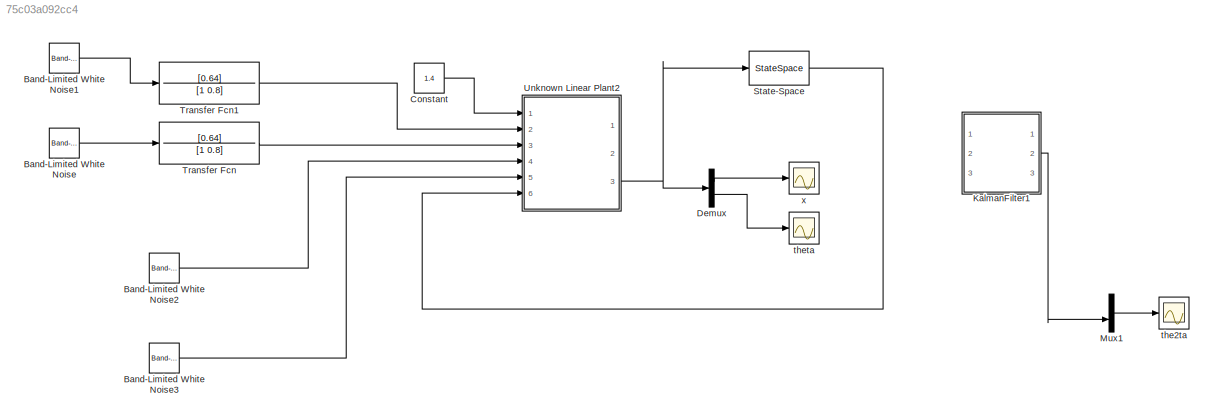
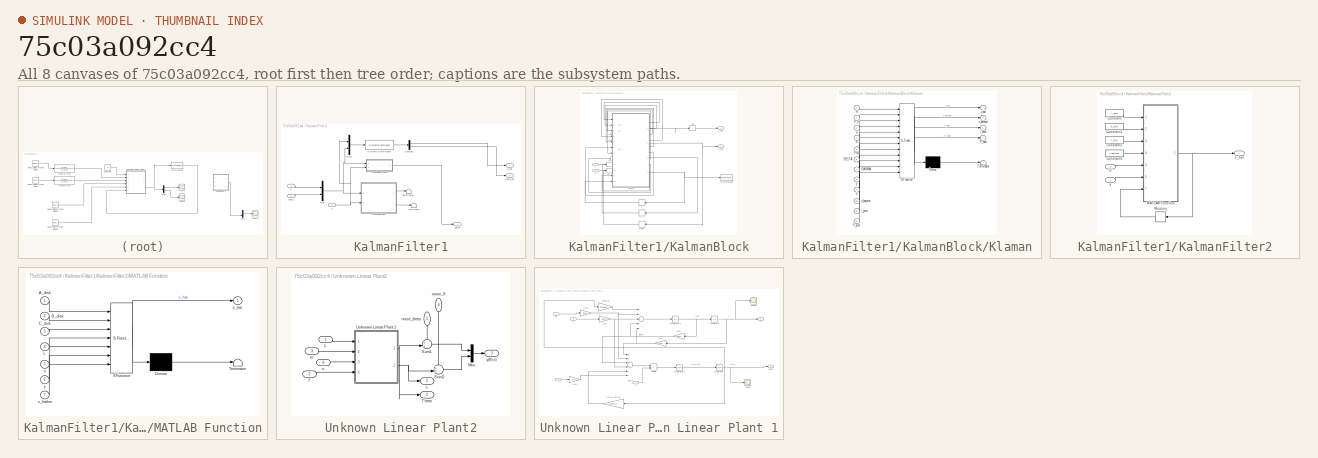
[diagram: thumbnail index - all 8 canvases of the model, root first then tree order]
MODEL slx_75c03a092cc4
KIND model
BLOCK [Reference] Band-Limited White Noise  REF=simulink/Sources/Band-Limited
White Noise
  Cov = 10e-4
  Ports = [0, 1]
  SourceBlock = simulink/Sources/Band-Limited\nWhite Noise
  SourceType = Band-Limited White Noise.
  Ts = h
  VectorParams1D = on
  seed = [23343]
BLOCK [Reference] Band-Limited White Noise1  REF=simulink/Sources/Band-Limited
White Noise
  Cov = 10
  Ports = [0, 1]
  SourceBlock = simulink/Sources/Band-Limited\nWhite Noise
  SourceType = Band-Limited White Noise.
  Ts = h
  VectorParams1D = on
  seed = [23344]
BLOCK [Reference] Band-Limited White Noise2  REF=simulink/Sources/Band-Limited
White Noise
  Cov = 10e-7
  Ports = [0, 1]
  SourceBlock = simulink/Sources/Band-Limited\nWhite Noise
  SourceType = Band-Limited White Noise.
  Ts = h
  VectorParams1D = on
  seed = [23343]
BLOCK [Reference] Band-Limited White Noise3  REF=simulink/Sources/Band-Limited
White Noise
  Cov = 10e-7
  Ports = [0, 1]
  SourceBlock = simulink/Sources/Band-Limited\nWhite Noise
  SourceType = Band-Limited White Noise.
  Ts = h
  VectorParams1D = on
  seed = [23344]
BLOCK [Constant] Constant
  Value = 1.4
BLOCK [Demux] Demux
  DisplayOption = bar
  Outputs = 2
  Ports = [1, 2]
BLOCK [SubSystem] KalmanFilter1
  Commented = on
  Ports = [3, 3]
  RequestExecContextInheritance = off
BLOCK [Demux] KalmanFilter1/Demux1
  DisplayOption = bar
  Outputs = 2
  Ports = [1, 2]
BLOCK [DiscreteStateSpace] KalmanFilter1/Discrete State-Space
  A = A_ss
  B = B_ss
  C = C_ss
  D = D_ss
BLOCK [SubSystem] KalmanFilter1/KalmanBlock
  Ports = [2, 2]
  RequestExecContextInheritance = off
BLOCK [Constant] KalmanFilter1/KalmanBlock/A2
  Value = H
BLOCK [Constant] KalmanFilter1/KalmanBlock/A4
  Value = phi
BLOCK [Constant] KalmanFilter1/KalmanBlock/A5
  Value = delta
BLOCK [Constant] KalmanFilter1/KalmanBlock/A6
  Value = gamma
BLOCK [Constant] KalmanFilter1/KalmanBlock/A7
  Value = P_0
BLOCK [Constant] KalmanFilter1/KalmanBlock/A8
  Value = Q_kalman
BLOCK [Constant] KalmanFilter1/KalmanBlock/A9
  Value = R_kalman
BLOCK [InitialCondition] KalmanFilter1/KalmanBlock/IC3
  Value = y_0
BLOCK [InitialCondition] KalmanFilter1/KalmanBlock/IC4
  Value = 0
BLOCK [InitialCondition] KalmanFilter1/KalmanBlock/IC5
  Value = X_0
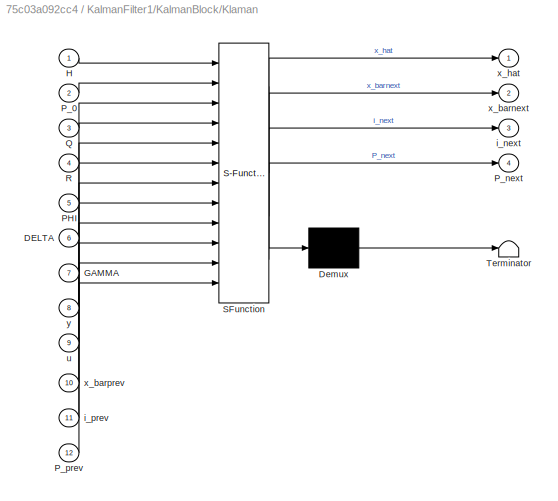
BLOCK [SubSystem] KalmanFilter1/KalmanBlock/Klaman
  ErrorFcn = Stateflow.Translate.translate
  PermitHierarchicalResolution = ExplicitOnly
  Ports = [12, 4]
  RequestExecContextInheritance = off
  SFBlockType = MATLAB Function
  TreatAsAtomicUnit = on
BLOCK [Demux] KalmanFilter1/KalmanBlock/Klaman/ Demux 
  Outputs = 1
  Ports = [1, 1]
BLOCK [S-Function] KalmanFilter1/KalmanBlock/Klaman/ SFunction 
  EnableBusSupport = on
  FunctionName = sf_sfun
  PortCounts = [12 5]
  Ports = [12, 5]
  Tag = Stateflow S-Function ForErik_14b 5
BLOCK [Terminator] KalmanFilter1/KalmanBlock/Klaman/ Terminator 
BLOCK [Inport] KalmanFilter1/KalmanBlock/Klaman/DELTA
  IconDisplay = Port number
  Port = 6
BLOCK [Inport] KalmanFilter1/KalmanBlock/Klaman/GAMMA
  IconDisplay = Port number
  Port = 7
BLOCK [Inport] KalmanFilter1/KalmanBlock/Klaman/H
  IconDisplay = Port number
BLOCK [Inport] KalmanFilter1/KalmanBlock/Klaman/PHI
  IconDisplay = Port number
  Port = 5
BLOCK [Inport] KalmanFilter1/KalmanBlock/Klaman/P_0
  IconDisplay = Port number
  Port = 2
BLOCK [Outport] KalmanFilter1/KalmanBlock/Klaman/P_next
  IconDisplay = Port number
  Port = 4
BLOCK [Inport] KalmanFilter1/KalmanBlock/Klaman/P_prev
  IconDisplay = Port number
  Port = 12
BLOCK [Inport] KalmanFilter1/KalmanBlock/Klaman/Q
  IconDisplay = Port number
  Port = 3
BLOCK [Inport] KalmanFilter1/KalmanBlock/Klaman/R
  IconDisplay = Port number
  Port = 4
BLOCK [Outport] KalmanFilter1/KalmanBlock/Klaman/i_next
  IconDisplay = Port number
  Port = 3
BLOCK [Inport] KalmanFilter1/KalmanBlock/Klaman/i_prev
  IconDisplay = Port number
  Port = 11
BLOCK [Inport] KalmanFilter1/KalmanBlock/Klaman/u
  IconDisplay = Port number
  Port = 9
BLOCK [Outport] KalmanFilter1/KalmanBlock/Klaman/x_barnext
  IconDisplay = Port number
  Port = 2
BLOCK [Inport] KalmanFilter1/KalmanBlock/Klaman/x_barprev
  IconDisplay = Port number
  Port = 10
BLOCK [Outport] KalmanFilter1/KalmanBlock/Klaman/x_hat
  IconDisplay = Port number
BLOCK [Inport] KalmanFilter1/KalmanBlock/Klaman/y
  IconDisplay = Port number
  Port = 8
BLOCK [Memory] KalmanFilter1/KalmanBlock/P
  X0 = P_0
BLOCK [ToWorkspace] KalmanFilter1/KalmanBlock/To Workspace
  FixptAsFi = on
  MaxDataPoints = inf
  Ports = [1]
  SampleTime = -1
  Save2DSignal = 3-D array (concatenate along third dimension)
  VariableName = P_simulation
BLOCK [Memory] KalmanFilter1/KalmanBlock/i 
BLOCK [Inport] KalmanFilter1/KalmanBlock/u 
  IconDisplay = Port number
  Port = 2
BLOCK [Outport] KalmanFilter1/KalmanBlock/x_bar
  IconDisplay = Port number
  Port = 2
BLOCK [Memory] KalmanFilter1/KalmanBlock/x_bar'
  X0 = X_0
BLOCK [Outport] KalmanFilter1/KalmanBlock/x_hat
  IconDisplay = Port number
BLOCK [Inport] KalmanFilter1/KalmanBlock/y 
  IconDisplay = Port number
BLOCK [SubSystem] KalmanFilter1/KalmanFilter2
  Ports = [2, 1]
  RequestExecContextInheritance = off
BLOCK [Constant] KalmanFilter1/KalmanFilter2/Constant
  Value = A_disk
BLOCK [Constant] KalmanFilter1/KalmanFilter2/Constant1
  Value = B_disk
BLOCK [Constant] KalmanFilter1/KalmanFilter2/Constant2
  Value = C_disk
BLOCK [Constant] KalmanFilter1/KalmanFilter2/Constant3
  Value = L_kalman
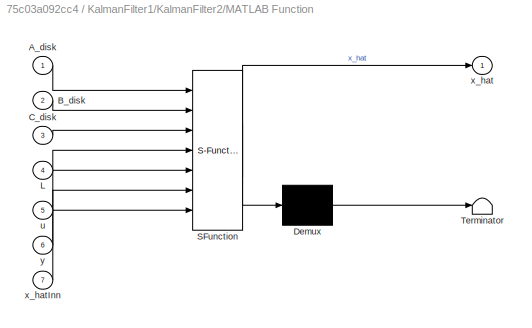
BLOCK [SubSystem] KalmanFilter1/KalmanFilter2/MATLAB Function
  ErrorFcn = Stateflow.Translate.translate
  PermitHierarchicalResolution = ExplicitOnly
  Ports = [7, 1]
  RequestExecContextInheritance = off
  SFBlockType = MATLAB Function
  TreatAsAtomicUnit = on
BLOCK [Demux] KalmanFilter1/KalmanFilter2/MATLAB Function/ Demux 
  Outputs = 1
  Ports = [1, 1]
BLOCK [S-Function] KalmanFilter1/KalmanFilter2/MATLAB Function/ SFunction 
  EnableBusSupport = on
  FunctionName = sf_sfun
  PortCounts = [7 2]
  Ports = [7, 2]
  Tag = Stateflow S-Function ForErik_14b 7
BLOCK [Terminator] KalmanFilter1/KalmanFilter2/MATLAB Function/ Terminator 
BLOCK [Inport] KalmanFilter1/KalmanFilter2/MATLAB Function/A_disk
  IconDisplay = Port number
BLOCK [Inport] KalmanFilter1/KalmanFilter2/MATLAB Function/B_disk
  IconDisplay = Port number
  Port = 2
BLOCK [Inport] KalmanFilter1/KalmanFilter2/MATLAB Function/C_disk
  IconDisplay = Port number
  Port = 3
BLOCK [Inport] KalmanFilter1/KalmanFilter2/MATLAB Function/L
  IconDisplay = Port number
  Port = 4
BLOCK [Inport] KalmanFilter1/KalmanFilter2/MATLAB Function/u
  IconDisplay = Port number
  Port = 5
BLOCK [Outport] KalmanFilter1/KalmanFilter2/MATLAB Function/x_hat
  IconDisplay = Port number
BLOCK [Inport] KalmanFilter1/KalmanFilter2/MATLAB Function/x_hatInn
  IconDisplay = Port number
  Port = 7
BLOCK [Inport] KalmanFilter1/KalmanFilter2/MATLAB Function/y
  IconDisplay = Port number
  Port = 6
BLOCK [Memory] KalmanFilter1/KalmanFilter2/Memory
  X0 = X_0
BLOCK [Inport] KalmanFilter1/KalmanFilter2/u
  IconDisplay = Port number
  Port = 2
BLOCK [Outport] KalmanFilter1/KalmanFilter2/x_hat
  IconDisplay = Port number
BLOCK [Inport] KalmanFilter1/KalmanFilter2/y
  IconDisplay = Port number
BLOCK [Mux] KalmanFilter1/Mux
  DisplayOption = bar
  Inputs = 2
  Ports = [2, 1]
BLOCK [Mux] KalmanFilter1/Mux1
  DisplayOption = bar
  Inputs = 2
  Ports = [2, 1]
BLOCK [Terminator] KalmanFilter1/Terminator
BLOCK [Terminator] KalmanFilter1/Terminator1
BLOCK [Inport] KalmanFilter1/theta
  IconDisplay = Port number
  Port = 2
BLOCK [Outport] KalmanFilter1/theta_hat
  IconDisplay = Port number
  Port = 2
BLOCK [Inport] KalmanFilter1/u 
  IconDisplay = Port number
  Port = 3
BLOCK [Outport] KalmanFilter1/vector
  IconDisplay = Port number
  Port = 3
BLOCK [Inport] KalmanFilter1/x
  IconDisplay = Port number
BLOCK [Outport] KalmanFilter1/x_hat
  IconDisplay = Port number
BLOCK [Mux] Mux1
  Commented = on
  DisplayOption = bar
  Inputs = 2
  Ports = [2, 1]
BLOCK [StateSpace] State-Space
  A = A_kA2
  B = B_kA2
  C = C_kA2
  D = D_kA2
  Ports = [1, 1]
  X0 = 0
BLOCK [TransferFcn] Transfer Fcn
  Denominator = [1 0.8]
  Numerator = [0.64]
BLOCK [TransferFcn] Transfer Fcn1
  Denominator = [1 0.8]
  Numerator = [0.64]
BLOCK [SubSystem] Unknown Linear Plant2
  Ports = [6, 3]
  RequestExecContextInheritance = off
BLOCK [Inport] Unknown Linear Plant2/L
  IconDisplay = Port number
BLOCK [Mux] Unknown Linear Plant2/Mux
  DisplayOption = bar
  Inputs = 2
  Ports = [2, 1]
BLOCK [Sum] Unknown Linear Plant2/Sum1
  IconShape = round
  InputSameDT = off
  Inputs = ++|
  OutDataTypeStr = Inherit: Inherit via internal rule
  Ports = [2, 1]
  SaturateOnIntegerOverflow = off
BLOCK [Sum] Unknown Linear Plant2/Sum2
  IconShape = round
  InputSameDT = off
  Inputs = ++|
  OutDataTypeStr = Inherit: Inherit via internal rule
  Ports = [2, 1]
  SaturateOnIntegerOverflow = off
BLOCK [Outport] Unknown Linear Plant2/Theta
  IconDisplay = Port number
  Port = 2
BLOCK [SubSystem] Unknown Linear Plant2/Unknown Linear Plant 1
  Ports = [4, 2]
  RequestExecContextInheritance = off
BLOCK [Gain] Unknown Linear Plant2/Unknown Linear Plant 1/((m+M)*g)//M
  Gain = ((m+M)*g)/M
  OutDataTypeStr = Inherit: Inherit via internal rule
  ParamDataTypeStr = Inherit: Inherit via internal rule
  SaturateOnIntegerOverflow = off
BLOCK [Gain] Unknown Linear Plant2/Unknown Linear Plant 1/(mg)//M
  Gain = m*g/M
  OutDataTypeStr = Inherit: Inherit via internal rule
  ParamDataTypeStr = Inherit: Inherit via internal rule
  SaturateOnIntegerOverflow = off
BLOCK [Gain] Unknown Linear Plant2/Unknown Linear Plant 1/1//M
  Gain = 1/M
  OutDataTypeStr = Inherit: Inherit via internal rule
  ParamDataTypeStr = Inherit: Inherit via internal rule
  SaturateOnIntegerOverflow = off
BLOCK [Gain] Unknown Linear Plant2/Unknown Linear Plant 1/1//M1
  Gain = 1/M
  OutDataTypeStr = Inherit: Inherit via internal rule
  ParamDataTypeStr = Inherit: Inherit via internal rule
  SaturateOnIntegerOverflow = off
BLOCK [Gain] Unknown Linear Plant2/Unknown Linear Plant 1/1//M2
  Gain = 1/m
  OutDataTypeStr = Inherit: Inherit via internal rule
  ParamDataTypeStr = Inherit: Inherit via internal rule
  SaturateOnIntegerOverflow = off
BLOCK [Product] Unknown Linear Plant2/Unknown Linear Plant 1/Divide
  InputSameDT = off
  Inputs = */
  OutDataTypeStr = Inherit: Inherit via internal rule
  Ports = [2, 1]
  RndMeth = Floor
  SaturateOnIntegerOverflow = off
BLOCK [Integrator] Unknown Linear Plant2/Unknown Linear Plant 1/Integrator
  Ports = [1, 1]
BLOCK [Integrator] Unknown Linear Plant2/Unknown Linear Plant 1/Integrator1
  Ports = [1, 1]
BLOCK [Integrator] Unknown Linear Plant2/Unknown Linear Plant 1/Integrator2
  Ports = [1, 1]
BLOCK [Integrator] Unknown Linear Plant2/Unknown Linear Plant 1/Integrator3
  Ports = [1, 1]
BLOCK [Inport] Unknown Linear Plant2/Unknown Linear Plant 1/L
  IconDisplay = Port number
BLOCK [Scope] Unknown Linear Plant2/Unknown Linear Plant 1/Scope
  DataFormat = StructureWithTime
  Floating = off
  LimitDataPoints = off
  NumInputPorts = 1
  Ports = [1]
  SaveName = ScopeData4
  ShowLegends = off
  YMax = 32.5
  YMin = 0
BLOCK [Scope] Unknown Linear Plant2/Unknown Linear Plant 1/Scope1
  DataFormat = StructureWithTime
  Floating = off
  LimitDataPoints = off
  NumInputPorts = 1
  Ports = [1]
  SaveName = ScopeData5
  ShowLegends = off
  YMax = 0.175
  YMin = 0.12
BLOCK [Sum] Unknown Linear Plant2/Unknown Linear Plant 1/Sum1
  InputSameDT = off
  Inputs = --+--
  OutDataTypeStr = Inherit: Inherit via internal rule
  Ports = [5, 1]
  SaturateOnIntegerOverflow = off
BLOCK [Sum] Unknown Linear Plant2/Unknown Linear Plant 1/Sum3
  InputSameDT = off
  Inputs = +++-+-
  OutDataTypeStr = Inherit: Inherit via internal rule
  Ports = [6, 1]
  SaturateOnIntegerOverflow = off
BLOCK [Gain] Unknown Linear Plant2/Unknown Linear Plant 1/b//M
  Gain = b/M
  OutDataTypeStr = Inherit: Inherit via internal rule
  ParamDataTypeStr = Inherit: Inherit via internal rule
  SaturateOnIntegerOverflow = off
BLOCK [Inport] Unknown Linear Plant2/Unknown Linear Plant 1/f
  IconDisplay = Port number
  Port = 4
BLOCK [Gain] Unknown Linear Plant2/Unknown Linear Plant 1/k//M
  Gain = k/M
  OutDataTypeStr = Inherit: Inherit via internal rule
  ParamDataTypeStr = Inherit: Inherit via internal rule
  SaturateOnIntegerOverflow = off
BLOCK [Outport] Unknown Linear Plant2/Unknown Linear Plant 1/theta
  IconDisplay = Port number
BLOCK [Inport] Unknown Linear Plant2/Unknown Linear Plant 1/u
  IconDisplay = Port number
  Port = 3
BLOCK [Inport] Unknown Linear Plant2/Unknown Linear Plant 1/w
  IconDisplay = Port number
  Port = 2
BLOCK [Outport] Unknown Linear Plant2/Unknown Linear Plant 1/x
  IconDisplay = Port number
  Port = 2
BLOCK [Inport] Unknown Linear Plant2/f
  IconDisplay = Port number
  Port = 2
BLOCK [Inport] Unknown Linear Plant2/noise_X
  IconDisplay = Port number
  Port = 4
BLOCK [Inport] Unknown Linear Plant2/noise_theta
  IconDisplay = Port number
  Port = 5
BLOCK [Inport] Unknown Linear Plant2/u
  IconDisplay = Port number
  Port = 6
BLOCK [Inport] Unknown Linear Plant2/w
  IconDisplay = Port number
  Port = 3
BLOCK [Outport] Unknown Linear Plant2/x
  IconDisplay = Port number
BLOCK [Outport] Unknown Linear Plant2/y(th,x)
  IconDisplay = Port number
  Port = 3
BLOCK [Scope] the2ta
  Floating = off
  LimitDataPoints = off
  NumInputPorts = 1
  Ports = [1]
  SaveName = ScopeData1
  ShowLegends = off
BLOCK [Scope] theta
  Floating = off
  LimitDataPoints = off
  NumInputPorts = 1
  Ports = [1]
  SaveName = ScopeData2
  ShowLegends = off
BLOCK [Scope] x
  Floating = off
  LimitDataPoints = off
  NumInputPorts = 1
  Ports = [1]
  ShowLegends = off
ANNOTATION Unknown Linear Plant2/Unknown Linear Plant 1: \theta
ANNOTATION Unknown Linear Plant2/Unknown Linear Plant 1: \theta dot
ANNOTATION Unknown Linear Plant2/Unknown Linear Plant 1: x
ANNOTATION Unknown Linear Plant2/Unknown Linear Plant 1: x dot
LINE Band-Limited White Noise1:1 -> Transfer Fcn1:1
LINE Band-Limited White Noise2:1 -> Unknown Linear Plant2:4
LINE Band-Limited White Noise3:1 -> Unknown Linear Plant2:5
LINE Band-Limited White Noise:1 -> Transfer Fcn:1
LINE Constant:1 -> Unknown Linear Plant2:1
LINE Demux:1 -> x:1
LINE Demux:2 -> theta:1
LINE KalmanFilter1/Demux1:1 -> KalmanFilter1/x_hat:1
LINE KalmanFilter1/Demux1:2 -> KalmanFilter1/theta_hat:1
LINE KalmanFilter1/Discrete State-Space:1 -> KalmanFilter1/Demux1:1
LINE KalmanFilter1/KalmanBlock/A2:1 -> KalmanFilter1/KalmanBlock/Klaman:1
LINE KalmanFilter1/KalmanBlock/A4:1 -> KalmanFilter1/KalmanBlock/Klaman:5
LINE KalmanFilter1/KalmanBlock/A5:1 -> KalmanFilter1/KalmanBlock/Klaman:6
LINE KalmanFilter1/KalmanBlock/A6:1 -> KalmanFilter1/KalmanBlock/Klaman:7
LINE KalmanFilter1/KalmanBlock/A7:1 -> KalmanFilter1/KalmanBlock/Klaman:2
LINE KalmanFilter1/KalmanBlock/A8:1 -> KalmanFilter1/KalmanBlock/Klaman:3
LINE KalmanFilter1/KalmanBlock/A9:1 -> KalmanFilter1/KalmanBlock/Klaman:4
LINE KalmanFilter1/KalmanBlock/IC3:1 -> KalmanFilter1/KalmanBlock/Klaman:8
LINE KalmanFilter1/KalmanBlock/IC4:1 -> KalmanFilter1/KalmanBlock/Klaman:9
LINE KalmanFilter1/KalmanBlock/IC5:1 -> KalmanFilter1/KalmanBlock/x_hat:1
LINE KalmanFilter1/KalmanBlock/Klaman:1 -> KalmanFilter1/KalmanBlock/IC5:1
NET KalmanFilter1/KalmanBlock/Klaman:2 -> KalmanFilter1/KalmanBlock/x_bar':1, KalmanFilter1/KalmanBlock/x_bar:1
LINE KalmanFilter1/KalmanBlock/Klaman:3 -> KalmanFilter1/KalmanBlock/i :1
NET KalmanFilter1/KalmanBlock/Klaman:4 -> KalmanFilter1/KalmanBlock/P:1, KalmanFilter1/KalmanBlock/To Workspace:1
LINE KalmanFilter1/KalmanBlock/P:1 -> KalmanFilter1/KalmanBlock/Klaman:12
LINE KalmanFilter1/KalmanBlock/i :1 -> KalmanFilter1/KalmanBlock/Klaman:11
LINE KalmanFilter1/KalmanBlock/u :1 -> KalmanFilter1/KalmanBlock/IC4:1
LINE KalmanFilter1/KalmanBlock/x_bar':1 -> KalmanFilter1/KalmanBlock/Klaman:10
LINE KalmanFilter1/KalmanBlock/y :1 -> KalmanFilter1/KalmanBlock/IC3:1
LINE KalmanFilter1/KalmanBlock:1 -> KalmanFilter1/Terminator1:1
LINE KalmanFilter1/KalmanBlock:2 -> KalmanFilter1/Terminator:1
LINE KalmanFilter1/KalmanFilter2/Constant1:1 -> KalmanFilter1/KalmanFilter2/MATLAB Function:2
LINE KalmanFilter1/KalmanFilter2/Constant2:1 -> KalmanFilter1/KalmanFilter2/MATLAB Function:3
LINE KalmanFilter1/KalmanFilter2/Constant3:1 -> KalmanFilter1/KalmanFilter2/MATLAB Function:4
LINE KalmanFilter1/KalmanFilter2/Constant:1 -> KalmanFilter1/KalmanFilter2/MATLAB Function:1
NET KalmanFilter1/KalmanFilter2/MATLAB Function:1 -> KalmanFilter1/KalmanFilter2/Memory:1, KalmanFilter1/KalmanFilter2/x_hat:1
LINE KalmanFilter1/KalmanFilter2/Memory:1 -> KalmanFilter1/KalmanFilter2/MATLAB Function:7
LINE KalmanFilter1/KalmanFilter2/u:1 -> KalmanFilter1/KalmanFilter2/MATLAB Function:5
LINE KalmanFilter1/KalmanFilter2/y:1 -> KalmanFilter1/KalmanFilter2/MATLAB Function:6
LINE KalmanFilter1/KalmanFilter2:1 -> KalmanFilter1/vector:1
LINE KalmanFilter1/Mux1:1 -> KalmanFilter1/Discrete State-Space:1
NET KalmanFilter1/Mux:1 -> KalmanFilter1/KalmanBlock:1, KalmanFilter1/KalmanFilter2:1, KalmanFilter1/Mux1:2
LINE KalmanFilter1/theta:1 -> KalmanFilter1/Mux:2
NET KalmanFilter1/u :1 -> KalmanFilter1/KalmanBlock:2, KalmanFilter1/KalmanFilter2:2, KalmanFilter1/Mux1:1
LINE KalmanFilter1/x:1 -> KalmanFilter1/Mux:1
LINE KalmanFilter1:2 -> Mux1:2
LINE Mux1:1 -> the2ta:1
LINE State-Space:1 -> Unknown Linear Plant2:6
LINE Transfer Fcn1:1 -> Unknown Linear Plant2:2
LINE Transfer Fcn:1 -> Unknown Linear Plant2:3
LINE Unknown Linear Plant2/L:1 -> Unknown Linear Plant2/Unknown Linear Plant 1:1
LINE Unknown Linear Plant2/Mux:1 -> Unknown Linear Plant2/y(th,x):1
LINE Unknown Linear Plant2/Sum1:1 -> Unknown Linear Plant2/Mux:1
LINE Unknown Linear Plant2/Sum2:1 -> Unknown Linear Plant2/Mux:2
LINE Unknown Linear Plant2/Unknown Linear Plant 1/((m+M)*g)//M:1 -> Unknown Linear Plant2/Unknown Linear Plant 1/Sum3:5
LINE Unknown Linear Plant2/Unknown Linear Plant 1/(mg)//M:1 -> Unknown Linear Plant2/Unknown Linear Plant 1/Sum1:1
NET Unknown Linear Plant2/Unknown Linear Plant 1/1//M1:1 -> Unknown Linear Plant2/Unknown Linear Plant 1/Sum1:2, Unknown Linear Plant2/Unknown Linear Plant 1/Sum3:2
LINE Unknown Linear Plant2/Unknown Linear Plant 1/1//M2:1 -> Unknown Linear Plant2/Unknown Linear Plant 1/Sum3:6
NET Unknown Linear Plant2/Unknown Linear Plant 1/1//M:1 -> Unknown Linear Plant2/Unknown Linear Plant 1/Sum1:3, Unknown Linear Plant2/Unknown Linear Plant 1/Sum3:4
LINE Unknown Linear Plant2/Unknown Linear Plant 1/Divide:1 -> Unknown Linear Plant2/Unknown Linear Plant 1/Integrator3:1
NET Unknown Linear Plant2/Unknown Linear Plant 1/Integrator1:1 -> Unknown Linear Plant2/Unknown Linear Plant 1/Integrator:1, Unknown Linear Plant2/Unknown Linear Plant 1/b//M:1
NET Unknown Linear Plant2/Unknown Linear Plant 1/Integrator2:1 -> Unknown Linear Plant2/Unknown Linear Plant 1/((m+M)*g)//M:1, Unknown Linear Plant2/Unknown Linear Plant 1/(mg)//M:1, Unknown Linear Plant2/Unknown Linear Plant 1/Scope:1, Unknown Linear Plant2/Unknown Linear Plant 1/theta:1
LINE Unknown Linear Plant2/Unknown Linear Plant 1/Integrator3:1 -> Unknown Linear Plant2/Unknown Linear Plant 1/Integrator2:1
NET Unknown Linear Plant2/Unknown Linear Plant 1/Integrator:1 -> Unknown Linear Plant2/Unknown Linear Plant 1/Scope1:1, Unknown Linear Plant2/Unknown Linear Plant 1/k//M:1, Unknown Linear Plant2/Unknown Linear Plant 1/x:1
LINE Unknown Linear Plant2/Unknown Linear Plant 1/L:1 -> Unknown Linear Plant2/Unknown Linear Plant 1/Divide:2
LINE Unknown Linear Plant2/Unknown Linear Plant 1/Sum1:1 -> Unknown Linear Plant2/Unknown Linear Plant 1/Integrator1:1
LINE Unknown Linear Plant2/Unknown Linear Plant 1/Sum3:1 -> Unknown Linear Plant2/Unknown Linear Plant 1/Divide:1
NET Unknown Linear Plant2/Unknown Linear Plant 1/b//M:1 -> Unknown Linear Plant2/Unknown Linear Plant 1/Sum1:4, Unknown Linear Plant2/Unknown Linear Plant 1/Sum3:3
LINE Unknown Linear Plant2/Unknown Linear Plant 1/f:1 -> Unknown Linear Plant2/Unknown Linear Plant 1/1//M2:1
NET Unknown Linear Plant2/Unknown Linear Plant 1/k//M:1 -> Unknown Linear Plant2/Unknown Linear Plant 1/Sum1:5, Unknown Linear Plant2/Unknown Linear Plant 1/Sum3:1
LINE Unknown Linear Plant2/Unknown Linear Plant 1/u:1 -> Unknown Linear Plant2/Unknown Linear Plant 1/1//M:1
LINE Unknown Linear Plant2/Unknown Linear Plant 1/w:1 -> Unknown Linear Plant2/Unknown Linear Plant 1/1//M1:1
NET Unknown Linear Plant2/Unknown Linear Plant 1:1 -> Unknown Linear Plant2/Sum1:2, Unknown Linear Plant2/Theta:1
NET Unknown Linear Plant2/Unknown Linear Plant 1:2 -> Unknown Linear Plant2/Sum2:2, Unknown Linear Plant2/x:1
LINE Unknown Linear Plant2/f:1 -> Unknown Linear Plant2/Unknown Linear Plant 1:4
LINE Unknown Linear Plant2/noise_X:1 -> Unknown Linear Plant2/Sum2:1
LINE Unknown Linear Plant2/noise_theta:1 -> Unknown Linear Plant2/Sum1:1
LINE Unknown Linear Plant2/u:1 -> Unknown Linear Plant2/Unknown Linear Plant 1:3
LINE Unknown Linear Plant2/w:1 -> Unknown Linear Plant2/Unknown Linear Plant 1:2
NET Unknown Linear Plant2:3 -> Demux:1, State-Space:1
note: NET lines group one-source signal fan-out (src -> all destinations, sorted); 1:1 wires keep LINE
CHART KalmanFilter1/KalmanBlock/Klaman states=1 transitions=1
  STATE_LABEL 'eML_blk_kernel()'
  STATE_LABEL "SCRIPT:\nfunction [x_hat, x_barnext, i_next, P_next] = KalmanFilter(H, P_0, Q, R, PHI, DELTA, GAMMA, y, u, x_barprev, i_prev, P_prev)\nI = eye(6);\nif i_prev == 0\n    x_barnext = x_barprev;\n    x_hat = x_barprev;\n    P_next = P_0;\nelse\n    K = P_prev * (H') * inv(H * P_prev * (H') + R);\n    x_hat = x_barprev + K * (y - H * x_barprev);\n    P_hat = (I - K * H) * P_prev * (I - K * H)' + K * R * K';\n    ...<+125ch>"
CHART KalmanFilter1/KalmanFilter2/MATLAB Function states=1 transitions=1
  STATE_LABEL 'eML_blk_kernel()'
  STATE_LABEL 'SCRIPT:\nfunction x_hat = fcn(A_disk,B_disk,C_disk,L,u,y,x_hatInn)\n\nx_hat=A_disk*x_hatInn+B_disk(:,1)*u+L*(y-C_disk*x_hatInn);\n\nend'
